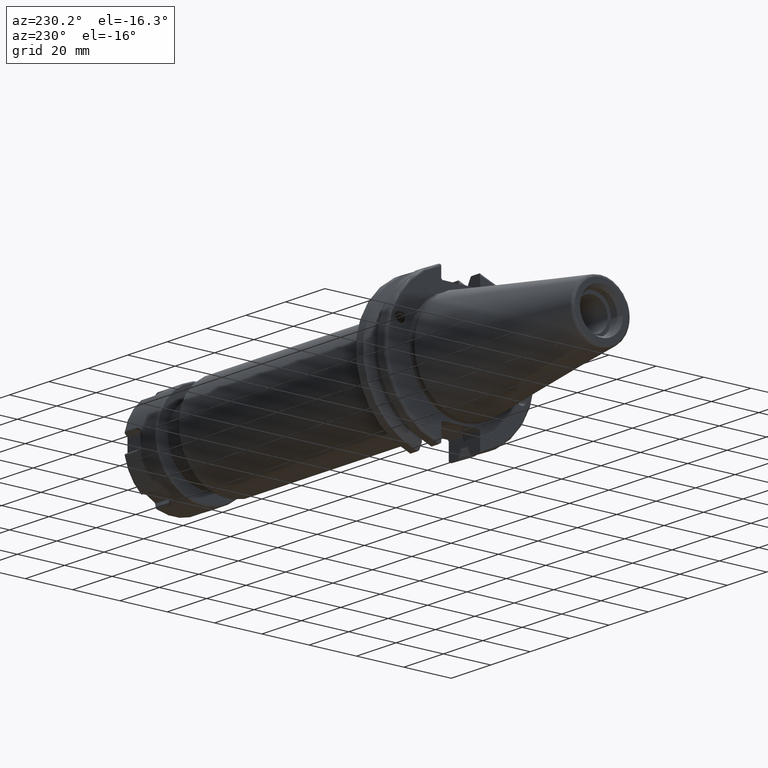
[diagram: clean part render]
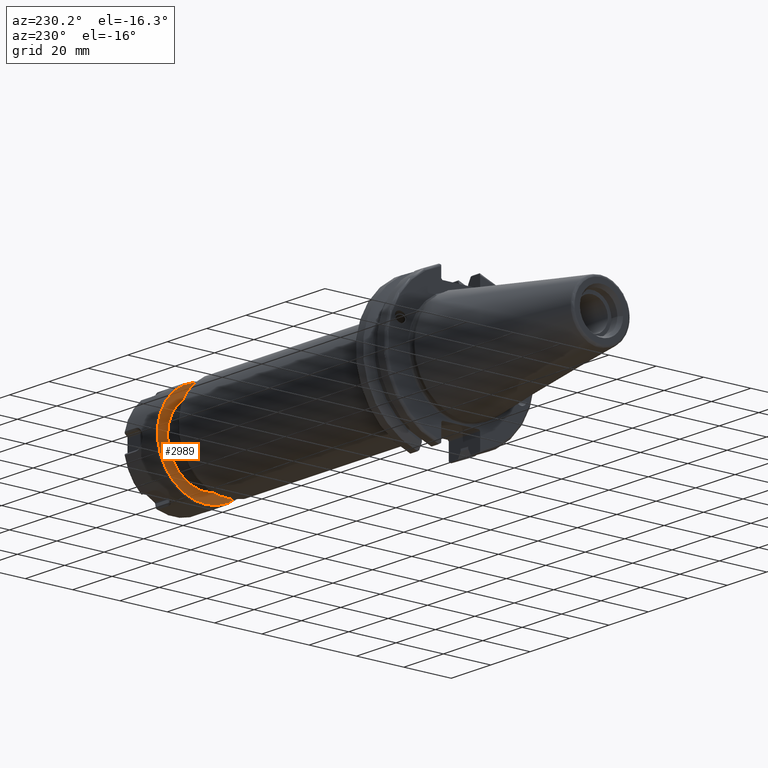
[diagram: same view with one face highlighted and labeled with its STEP entity id]
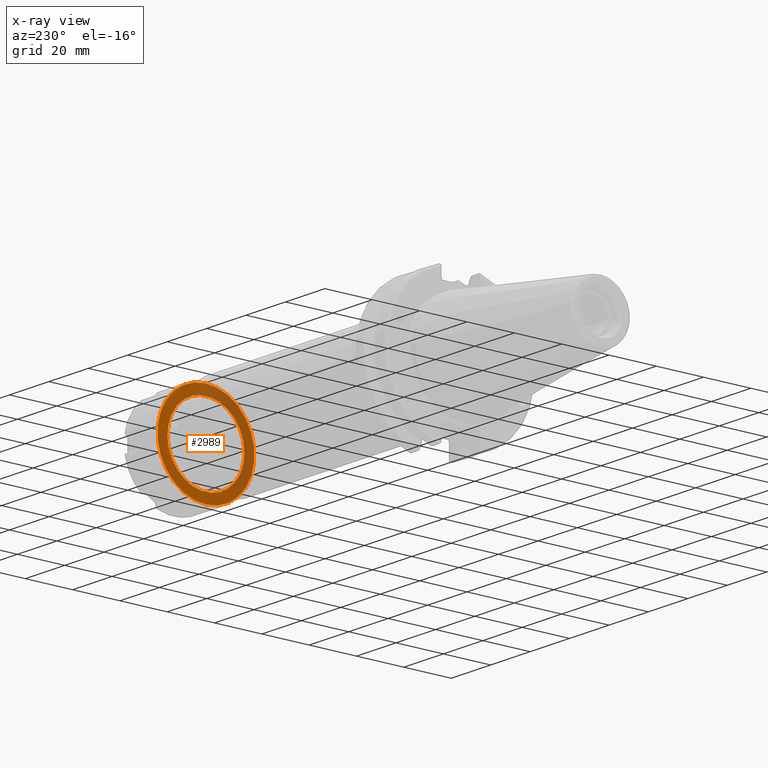
[diagram: x-ray of the same camera — body ghosted, the highlighted face saturated]
A machine part, auxiliary view. The second image highlights one B-rep face of the part: STEP entity #2989.
The next image is the same camera in x-ray: the body ghosted, the highlighted face saturated — about 42% of this face is hidden behind the body in this view.
In plain terms, the highlighted planar face has unit normal (1, 0, 0).
Its self-contained STEP definition (entity closure, byte-faithful):
#319=FACE_BOUND('',#672,.T.);
#362=PLANE('',#3332);
#486=FACE_OUTER_BOUND('',#671,.T.);
#671=EDGE_LOOP('',(#2473));
#672=EDGE_LOOP('',(#2474));
#1212=CIRCLE('',#3333,20.5);
#1213=CIRCLE('',#3334,16.25);
#1426=VERTEX_POINT('',#5100);
#1427=VERTEX_POINT('',#5102);
#1792=EDGE_CURVE('',#1426,#1426,#1212,.T.);
#1793=EDGE_CURVE('',#1427,#1427,#1213,.T.);
#2473=ORIENTED_EDGE('',*,*,#1792,.T.);
#2474=ORIENTED_EDGE('',*,*,#1793,.T.);
#2989=ADVANCED_FACE('',(#486,#319),#362,.F.);
#3332=AXIS2_PLACEMENT_3D('',#5099,#3936,#3937);
#3333=AXIS2_PLACEMENT_3D('',#5101,#3938,#3939);
#3334=AXIS2_PLACEMENT_3D('',#5103,#3940,#3941);
#3936=DIRECTION('center_axis',(1.,0.,0.));
#3937=DIRECTION('ref_axis',(0.,0.,-1.));
#3938=DIRECTION('center_axis',(-1.,0.,0.));
#3939=DIRECTION('ref_axis',(0.,0.,-1.));
#3940=DIRECTION('center_axis',(1.,0.,0.));
#3941=DIRECTION('ref_axis',(0.,1.,0.));
#5099=CARTESIAN_POINT('Origin',(-10.,0.,0.));
#5100=CARTESIAN_POINT('',(-10.,0.,20.5));
#5101=CARTESIAN_POINT('Origin',(-10.,1.030225566187E-13,0.));
#5102=CARTESIAN_POINT('',(-10.,-16.2496746762917,0.102824679349353));
#5103=CARTESIAN_POINT('Origin',(-10.,0.,0.));